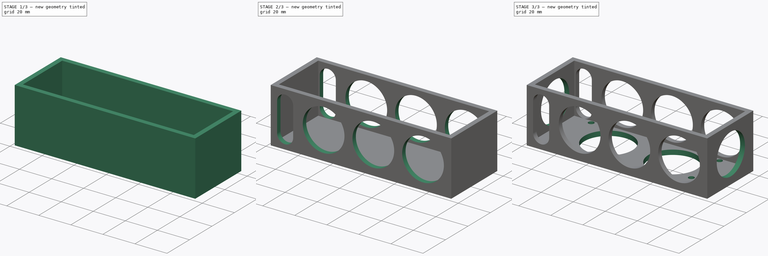
[diagram: build sequence overview — one tinted view per stage of 3, left to right]
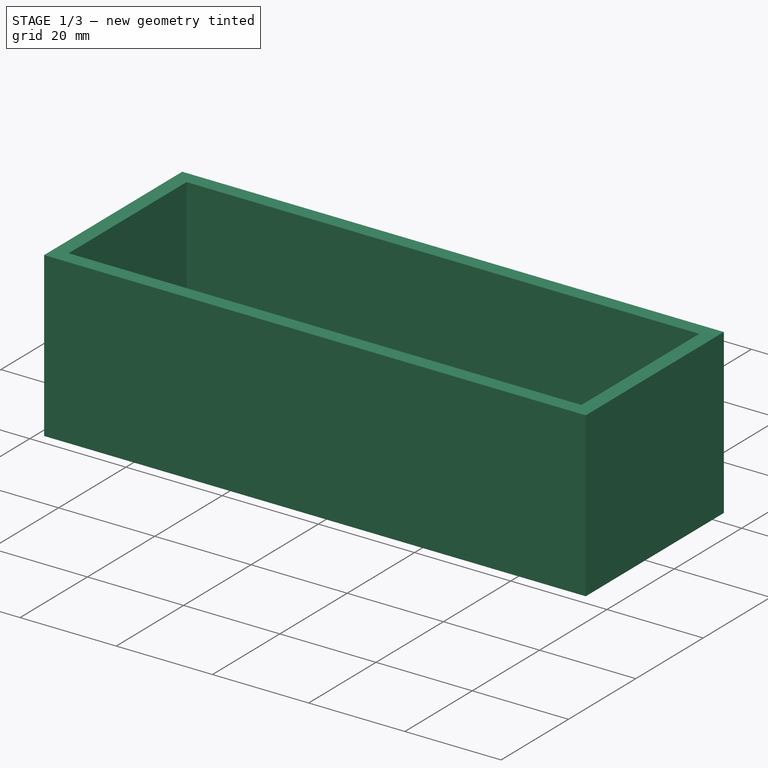
[diagram: stage 1 of 3 — iso view after this stage's code; geometry added in this stage tinted green]
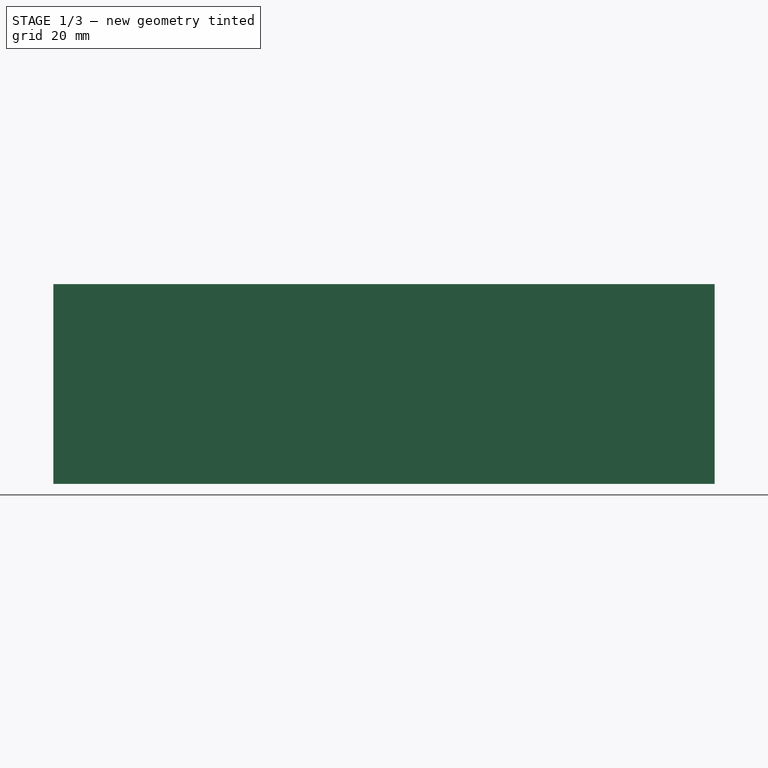
[diagram: stage 1 of 3 — front view after this stage's code; geometry added in this stage tinted green]
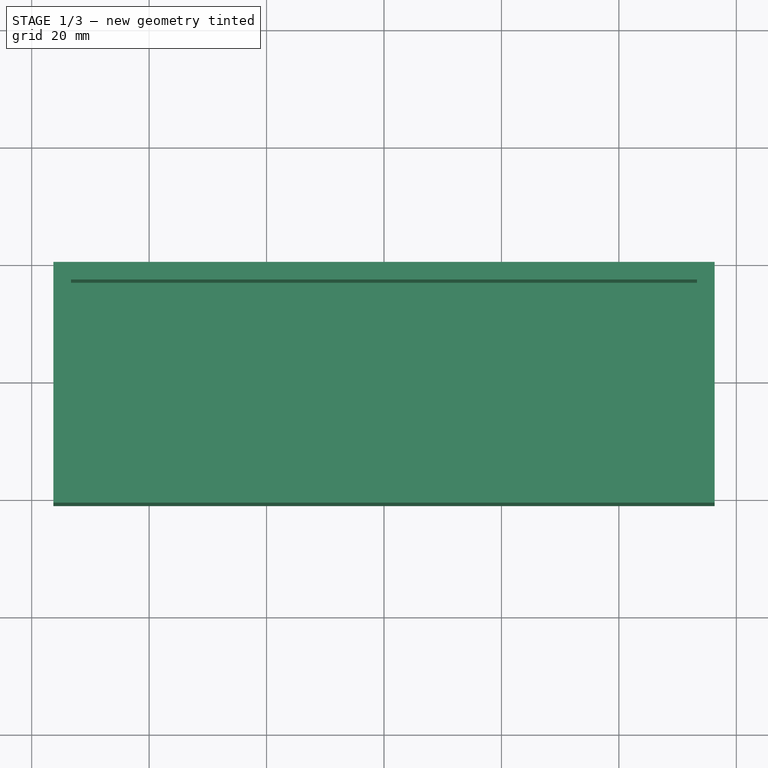
[diagram: stage 1 of 3 — top view after this stage's code; geometry added in this stage tinted green]
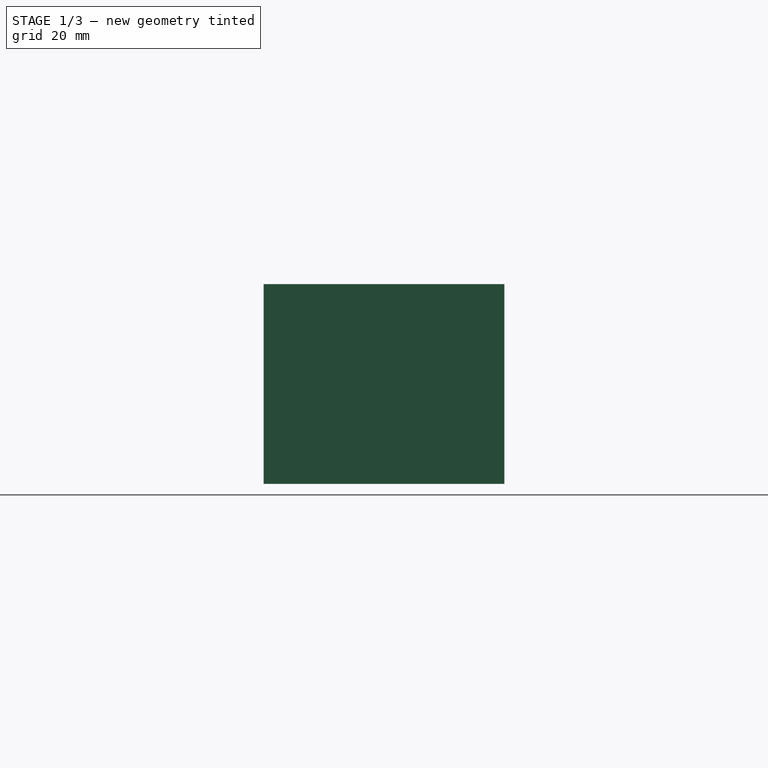
[diagram: stage 1 of 3 — right view after this stage's code; geometry added in this stage tinted green]
FCSTD DOCUMENT  (FreeCAD 0.14R3700 (Git))
Label: BattBox2
License: CC-BY 3.0
LicenseURL: http://creativecommons.org/licenses/by/3.0/
objects: Sketcher::SketchObject×5, PartDesign::Pocket×4, Drawing::FeatureViewPart×4, PartDesign::Pad×1, Drawing::FeaturePage×1
note: 15 computed .brp shape members not serialized (recipe doc carries the construction recipe); baked Part::Feature solids carry a one-line shape summary decoded from their .brp

FEATURE [Sketcher::SketchObject] Sketch  label="Top"
  Placement = pos=(0,0,0) rot=(1,0,0;1.5708rad)
  sketch-geometry (4):
    g0: LineSegment StartX=-56.3 StartY=0 StartZ=0 EndX=56.3 EndY=0 EndZ=0
    g1: LineSegment StartX=56.3 StartY=0 StartZ=0 EndX=56.3 EndY=34 EndZ=0
    g2: LineSegment StartX=56.3 StartY=34 StartZ=0 EndX=-56.3 EndY=34 EndZ=0
    g3: LineSegment StartX=-56.3 StartY=34 StartZ=0 EndX=-56.3 EndY=0 EndZ=0
  constraints (12):
    c: Coincident(g0,g1)
    c: Coincident(g1,g2)
    c: Coincident(g2,g3)
    c: Coincident(g3,g0)
    c: Horizontal(g0)
    c: Horizontal(g2)
    c: Vertical(g1)
    c: Vertical(g3)
    c: DistanceX(g2,g1) = 112.6
    c: DistanceX(g-1,g0) = 56.3
    c: DistanceY(g0,g1) = 34
    c: DistanceY(g-1,g0) = 0
FEATURE [PartDesign::Pad] Pad
  Length = 41
  Length2 = 20
  Placement = pos=(0,0,0) rot=(1,0,0;1.5708rad)
  Sketch = -> Sketch
  Type = 0
FEATURE [Sketcher::SketchObject] Sketch005  label="Side 1"
  Placement = pos=(0,0,34) rot=(0,0,1;3.14159rad)
  Support = -> Pad [Face3]
  sketch-geometry (4):
    g0: LineSegment StartX=-53.3 StartY=38 StartZ=0 EndX=53.3 EndY=38 EndZ=0
    g1: LineSegment StartX=53.3 StartY=38 StartZ=0 EndX=53.3 EndY=3 EndZ=0
    g2: LineSegment StartX=53.3 StartY=3 StartZ=0 EndX=-53.3 EndY=3 EndZ=0
    g3: LineSegment StartX=-53.3 StartY=3 StartZ=0 EndX=-53.3 EndY=38 EndZ=0
  constraints (8):
    c: Coincident(g0,g1)
    c: Coincident(g1,g2)
    c: Coincident(g2,g3)
    c: Coincident(g3,g0)
    c: Horizontal(g0)
    c: Horizontal(g2)
    c: Vertical(g1)
    c: Vertical(g3)
FEATURE [PartDesign::Pocket] Pocket
  Length = 31
  Placement = pos=(0,0,0) rot=(1,0,0;1.5708rad)
  Sketch = -> Sketch005
  Type = 0
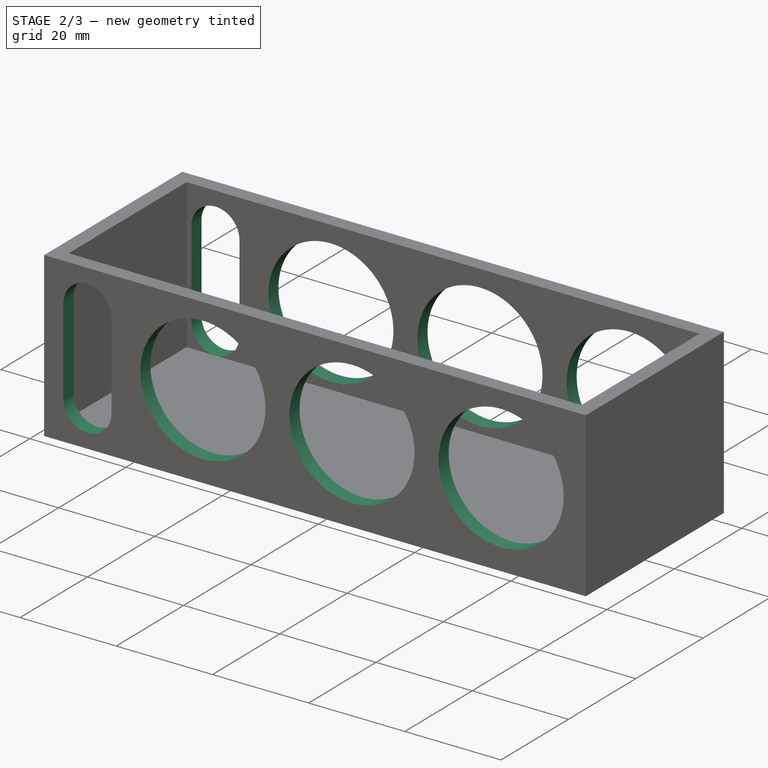
[diagram: stage 2 of 3 — iso view after this stage's code; geometry added in this stage tinted green]
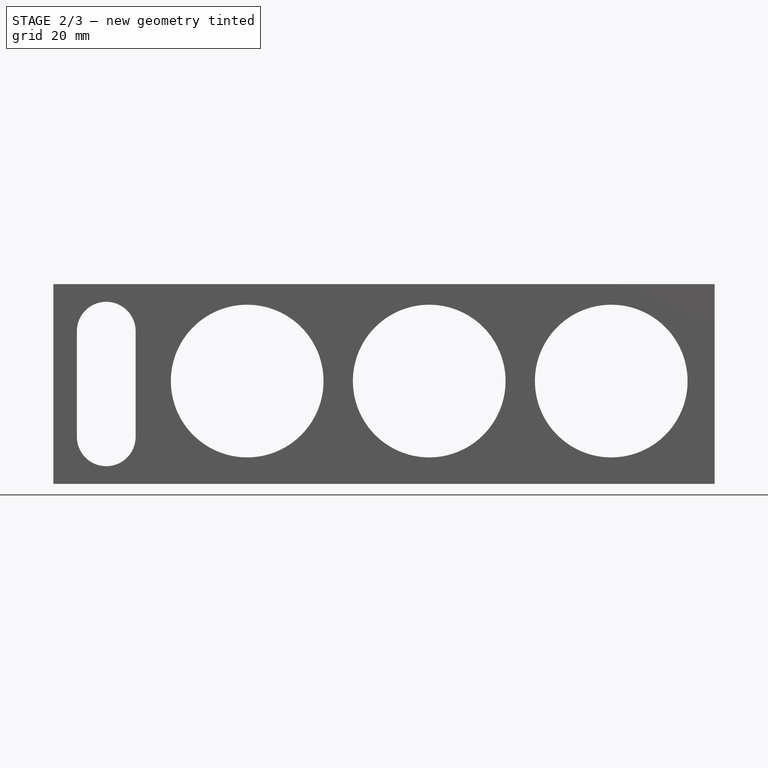
[diagram: stage 2 of 3 — front view after this stage's code; geometry added in this stage tinted green]
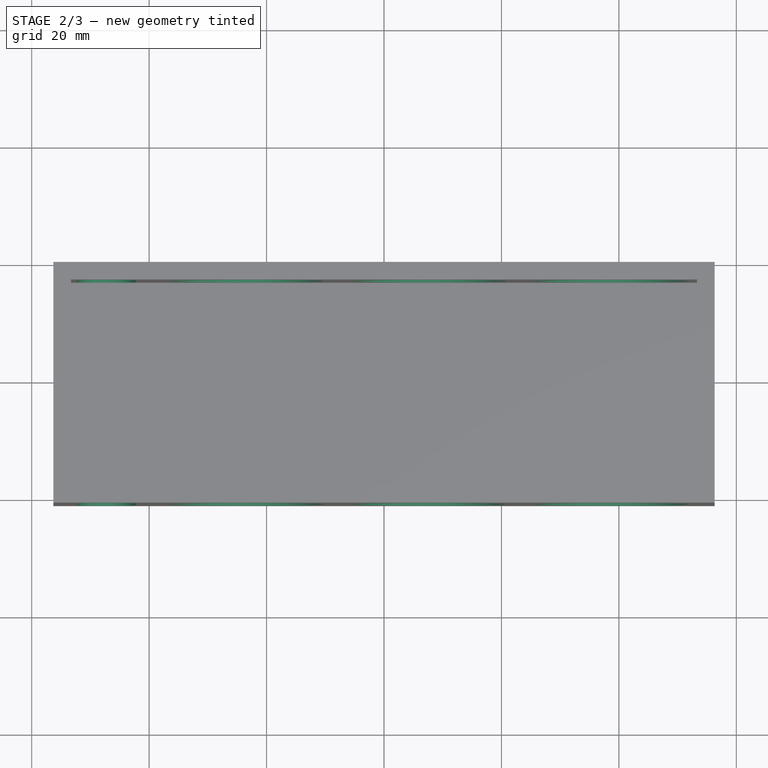
[diagram: stage 2 of 3 — top view after this stage's code; geometry added in this stage tinted green]
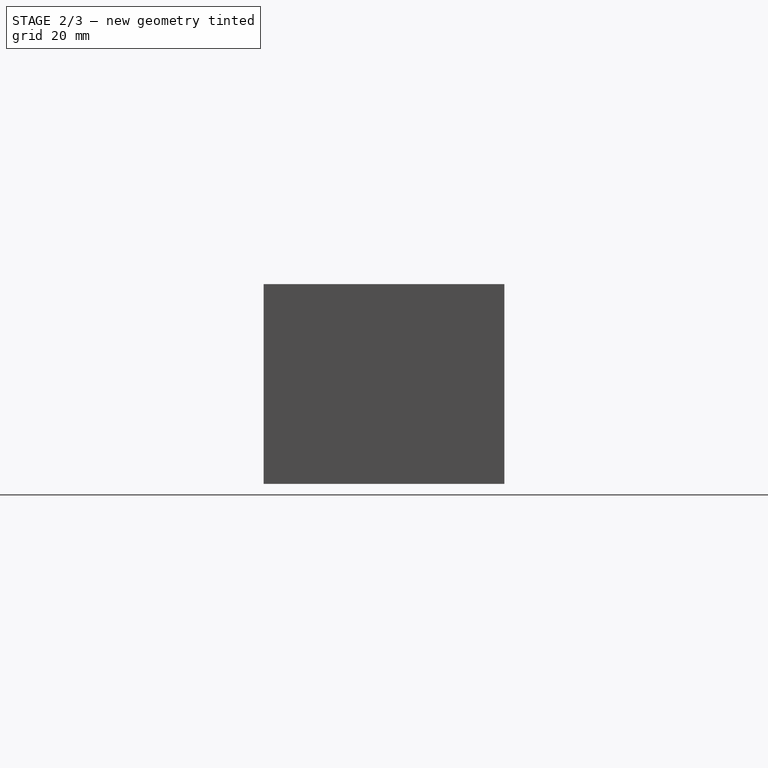
[diagram: stage 2 of 3 — right view after this stage's code; geometry added in this stage tinted green]
FEATURE [Sketcher::SketchObject] Sketch007  label="top cutouts"
  Placement = pos=(0,-41,0) rot=(1,0,0;1.5708rad)
  Support = -> Pocket [Face5]
  sketch-geometry (7):
    g0: Circle CenterX=-23.3 CenterY=17.5 CenterZ=0 NormalX=0 NormalY=0 NormalZ=1 Radius=13
    g1: Circle CenterX=7.7 CenterY=17.5 CenterZ=0 NormalX=0 NormalY=0 NormalZ=1 Radius=13
    g2: Circle CenterX=38.7 CenterY=17.5 CenterZ=0 NormalX=0 NormalY=0 NormalZ=1 Radius=13
    g3: ArcOfCircle CenterX=-47.3 CenterY=26 CenterZ=0 NormalX=0 NormalY=0 NormalZ=1 Radius=5 StartAngle=2.3871e-08 EndAngle=3.14159
    g4: ArcOfCircle CenterX=-47.3 CenterY=8 CenterZ=0 NormalX=0 NormalY=0 NormalZ=1 Radius=5 StartAngle=3.14159 EndAngle=6.28319
    g5: LineSegment StartX=-52.3 StartY=26 StartZ=0 EndX=-52.3 EndY=8.00002 EndZ=0
    g6: LineSegment StartX=-42.3 StartY=26 StartZ=0 EndX=-42.3 EndY=8.00002 EndZ=0
  constraints (11):
    c: Tangent(g3,g5)
    c: Tangent(g3,g6)
    c: Tangent(g4,g5)
    c: Tangent(g4,g6)
    c: Coincident(g3,g6)
    c: Coincident(g3,g5)
    c: Coincident(g5,g4)
    c: Coincident(g6,g4)
    c: Vertical(g5)
    c: Equal(g3,g4)
    c: Radius(g3) = 5
FEATURE [PartDesign::Pocket] Pocket001
  Length = 5
  Placement = pos=(0,0,0) rot=(1,0,0;1.5708rad)
  Sketch = -> Sketch007
  Type = 1
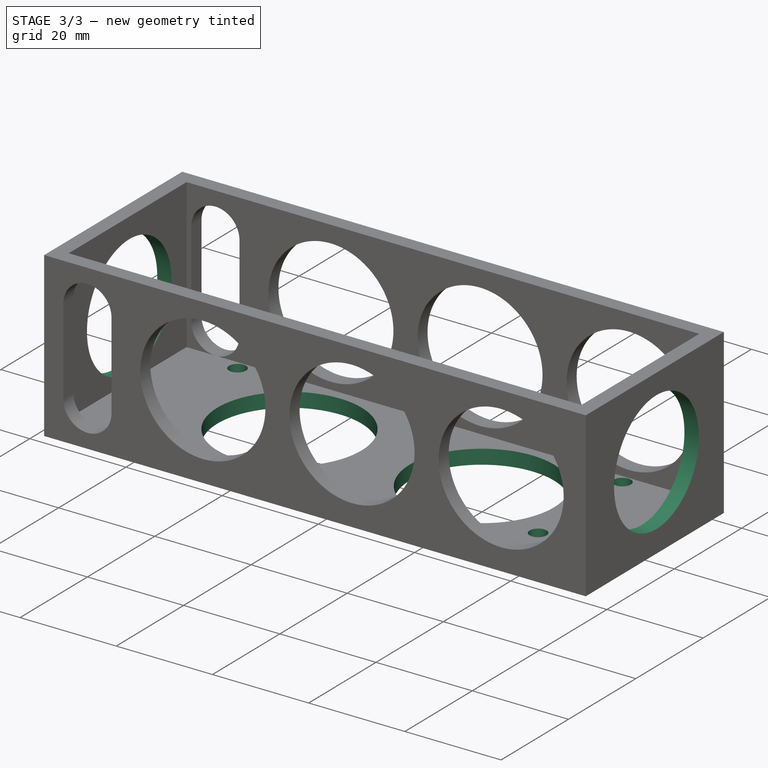
[diagram: stage 3 of 3 — iso view after this stage's code; geometry added in this stage tinted green]
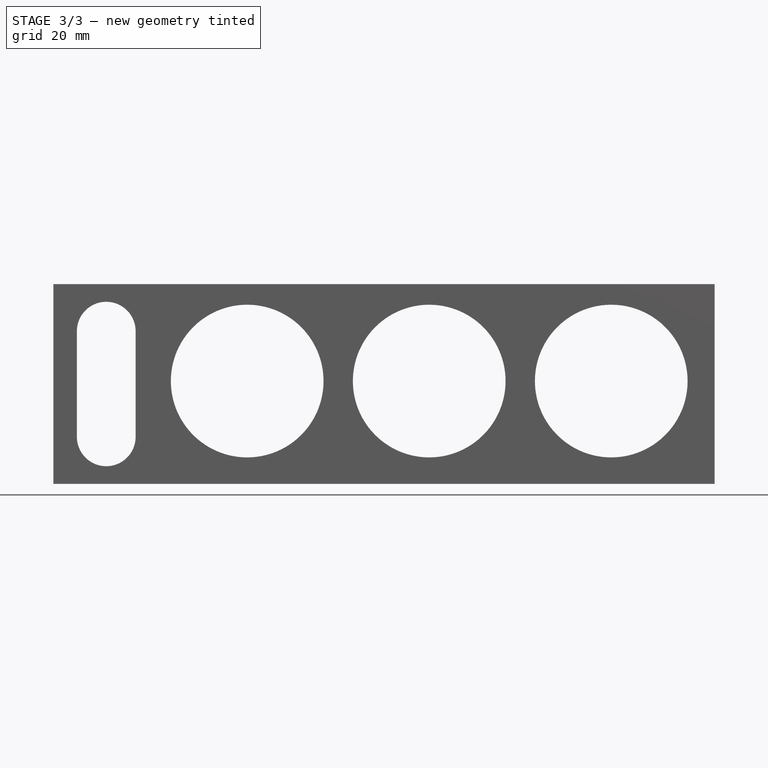
[diagram: stage 3 of 3 — front view after this stage's code; geometry added in this stage tinted green]
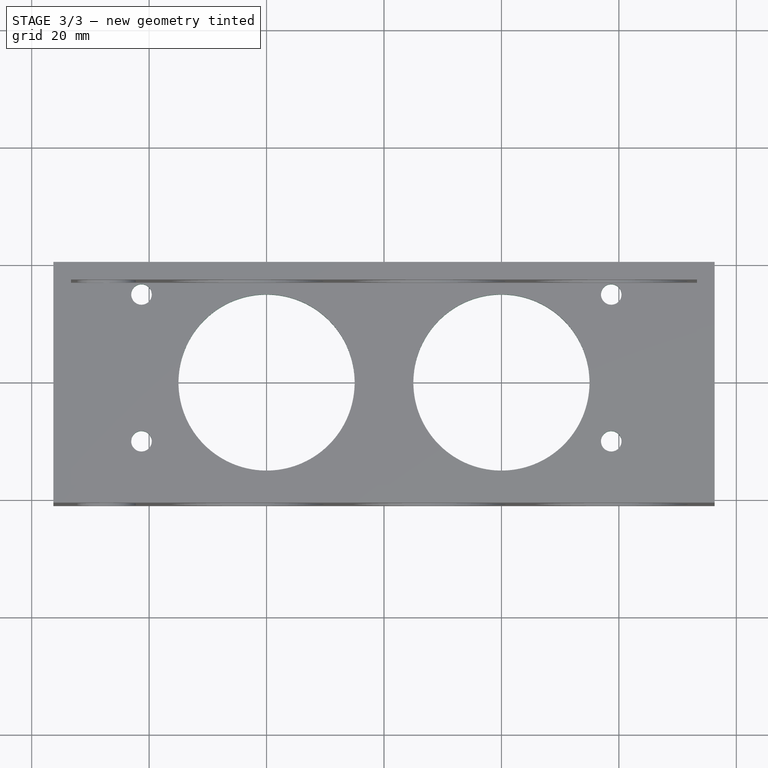
[diagram: stage 3 of 3 — top view after this stage's code; geometry added in this stage tinted green]
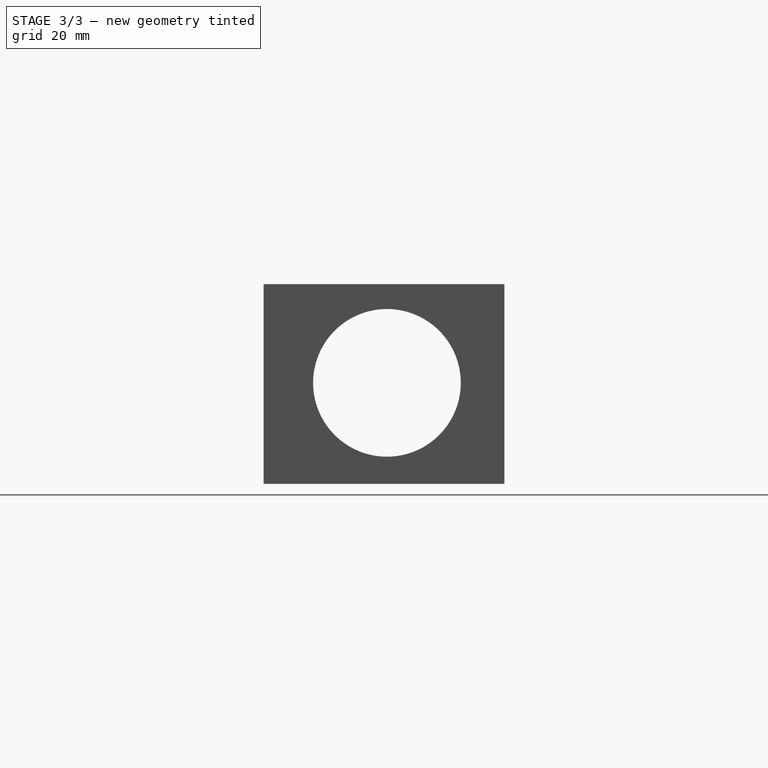
[diagram: stage 3 of 3 — right view after this stage's code; geometry added in this stage tinted green]
FEATURE [Sketcher::SketchObject] Sketch006  label="Back Cut out"
  Placement = pos=(0,0,0) rot=(1,0,0;3.14159rad)
  Support = -> Pocket001 [Face1]
  sketch-geometry (6):
    g0: Circle CenterX=-41.3 CenterY=30 CenterZ=0 NormalX=0 NormalY=0 NormalZ=1 Radius=1.75
    g1: Circle CenterX=38.7 CenterY=30 CenterZ=0 NormalX=0 NormalY=0 NormalZ=1 Radius=1.75
    g2: Circle CenterX=-41.3 CenterY=5 CenterZ=0 NormalX=0 NormalY=0 NormalZ=1 Radius=1.75
    g3: Circle CenterX=38.7 CenterY=5 CenterZ=0 NormalX=0 NormalY=0 NormalZ=1 Radius=1.75
    g4: Circle CenterX=-20 CenterY=20 CenterZ=0 NormalX=0 NormalY=0 NormalZ=1 Radius=15
    g5: Circle CenterX=20 CenterY=20 CenterZ=0 NormalX=0 NormalY=0 NormalZ=1 Radius=15
  constraints (12):
    c: DistanceX(g2,g3) = 80
    c: DistanceY(g3,g2) = 0
    c: DistanceX(g0,g2) = 0
    c: DistanceY(g2,g0) = 25
    c: Radius(g2) = 1.75
    c: Radius(g0) = 1.75
    c: Radius(g3) = 1.75
    c: DistanceX(g1,g3) = 0
    c: DistanceY(g1,g3) = -25
    c: Radius(g1) = 1.75
    c: Radius(g4) = 15
    c: Radius(g5) = 15
FEATURE [PartDesign::Pocket] Pocket002
  Length = 5
  Placement = pos=(0,0,0) rot=(1,0,0;1.5708rad)
  Sketch = -> Sketch006
  Type = 0
FEATURE [Sketcher::SketchObject] Sketch008  label="side cutouts"
  Placement = pos=(56.3,0,0) rot=(0.707107,0,0.707107;3.14159rad)
  Support = -> Pocket002 [Face5]
  sketch-geometry (1):
    g0: Circle CenterX=17.1956 CenterY=20 CenterZ=0 NormalX=0 NormalY=0 NormalZ=1 Radius=12.5755
FEATURE [PartDesign::Pocket] Pocket003
  Length = 5
  Placement = pos=(0,0,0) rot=(1,0,0;1.5708rad)
  Sketch = -> Sketch008
  Type = 1
FEATURE [Drawing::FeatureViewPart] Ortho  label="Ortho_0_0"
  Direction = (1,0,0)
  HiddenWidth = 0.15
  LineWidth = 0.35
  Rotation = -90
  ShowHiddenLines = false
  ShowSmoothLines = false
  Source = -> Pocket003
  Tolerance = 0.05
  ViewResult = <g id="Ortho_0_0"\n   transform="rotate(-90,327.867,203.533) translate(327.867,203.533) scale(1,1)"\n  >\n<g   stroke="rgb(0, 0, 0)"\n   stroke-width="0.35"\n   stroke-linecap="butt"\n   stroke-linejoin="miter"\n   fill="none"\n   transform="scale(1,-1)"\n  >\n<path id= "1" d=" M 0 0 L 3.18634e-014 41 " />\n<path id= "2" d=" M 0 0 L 34 -2.64233e-014 " />\n<path d="M17.5,-1.4877e-014 L18.9555,-1.60082e-014  L20.3928,-1.71251e-014  L21.7936,-1.82138e-014  L23.1405,-1.92605e-014  L24.4164,-2.02521e-014  L25.6054,-2.11761e-014  L26.6924,-2.20209e-014  L27.6638,-2.27759e-014  L28.5074,-2.34315e-014  L29.2126,-2.39795e-014  L29.7705,-2.44131e-014  L30.1741,-2.47267e-014  L30.4183,-2.49165e-014  L30.5,-2.498e-014 " /><path d="M4.5,-4.77396e-015 L4.58174,-4.83748e-015  L4.82594,-5.02726e-015  L5.22952,-5.34091e-015  L5.7874,-5.77447e-015  L6.49259,-6.32251e-015  L7.33619,-6.97812e-015  L8.30761,-7.73307e-015  L9.39463,-8.57785e-015  L10.5836,-9.50185e-015  L11.8595,-1.04934e-014  L13.2064,-1.15402e-014  L14.6072,-1.26289e-014  L16.0445,-1.37458e-014  L17.5,-1.4877e-014 " /><path id= "5" d=" M 3.18634e-014 41 L 34 41 " />\n<path id= "6" d=" M 34 -2.64233e-014 L 34 41 " />\n<circle cx ="17.1956" cy ="20" r ="12.5755" /><path id= "8" d=" M 34 38 L 34 3 " />\n<circle cx ="17.1956" cy ="20" r ="12.5755" /></g>\n</g>
  X = 327.867
  Y = 203.533
FEATURE [Drawing::FeatureViewPart] Ortho001  label="Ortho_0_1"
  Direction = (0,0,1)
  HiddenWidth = 0.15
  LineWidth = 0.35
  Rotation = 90
  ShowHiddenLines = false
  ShowSmoothLines = false
  Source = -> Pocket003
  Tolerance = 0.05
  ViewResult = <blob: 2928 chars omitted>
  X = 327.867
  Y = 89.7667
FEATURE [Drawing::FeatureViewPart] Ortho002  label="Ortho_-1_1"
  Direction = (0.57735,-0.57735,0.57735)
  HiddenWidth = 0.15
  LineWidth = 0.35
  Rotation = -120
  ShowHiddenLines = false
  ShowSmoothLines = false
  Source = -> Pocket003
  Tolerance = 0.05
  ViewResult = <blob: 7477 chars omitted>
  X = 162.929
  Y = 95.278
FEATURE [Drawing::FeatureViewPart] Ortho003  label="Ortho_-1_0"
  Direction = (0,-1,0)
  HiddenWidth = 0.15
  LineWidth = 0.35
  Rotation = 180
  ShowHiddenLines = false
  ShowSmoothLines = false
  Source = -> Pocket003
  Tolerance = 0.05
  ViewResult = <blob: 2299 chars omitted>
  X = 148.433
  Y = 203.533
FEATURE [Drawing::FeaturePage] Page
  EditableTexts = David Klingenberg | 1/25/2015 | Brandon Ortiz | CHECK DATE | SCALE | WEIGHT | 001 | 1 | Drone Battery Bracket | V2
  Group = -> [Ortho,Ortho001,Ortho002,Ortho003]
  Template = C:/Program Files/FreeCAD 0.14/data/Mod/Drawing/Templates/A3_Landscape.svg
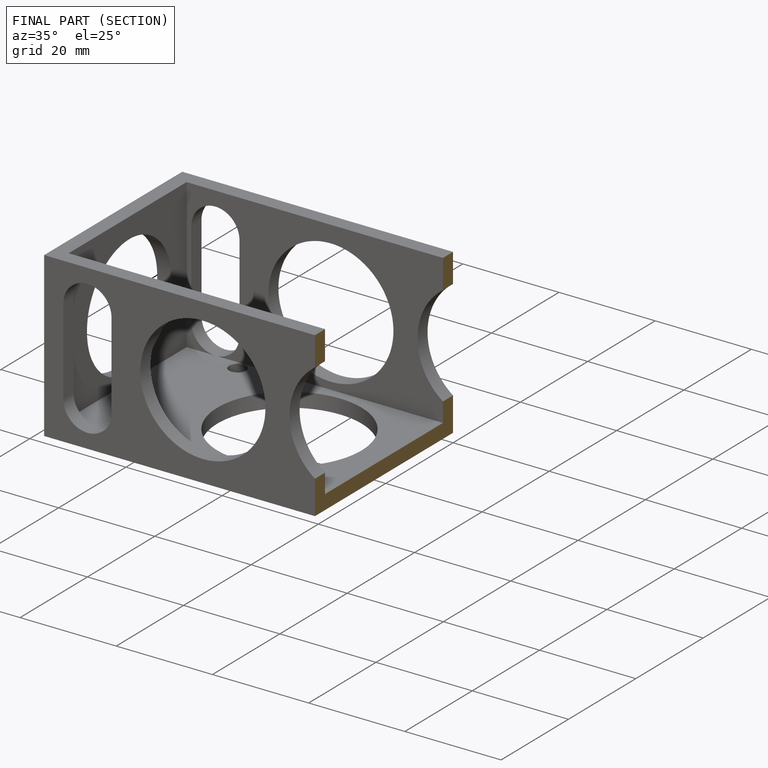
[diagram: finished part — half-section view (interior)]
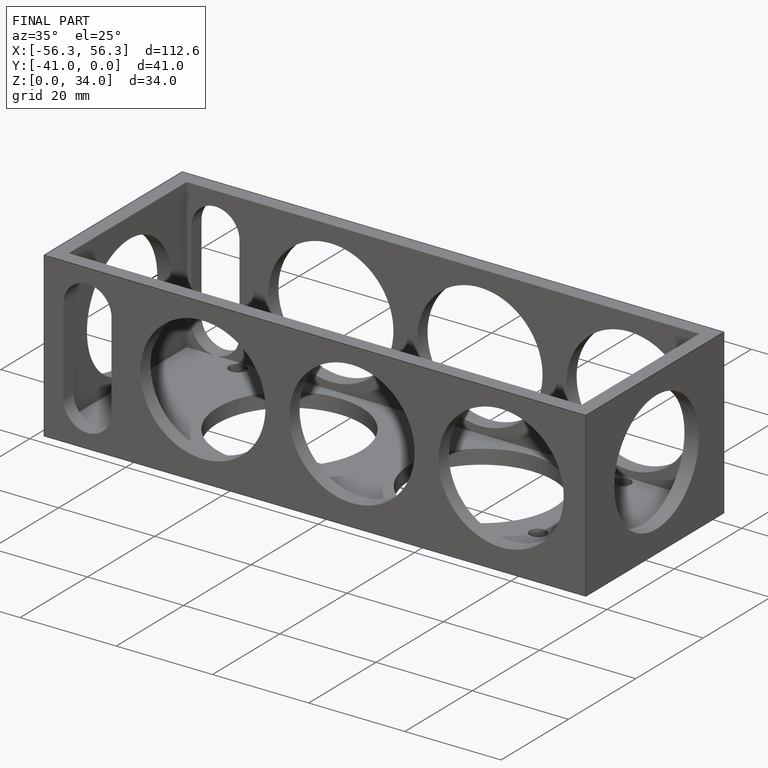
[diagram: finished part — iso view with bounding-box wireframe]
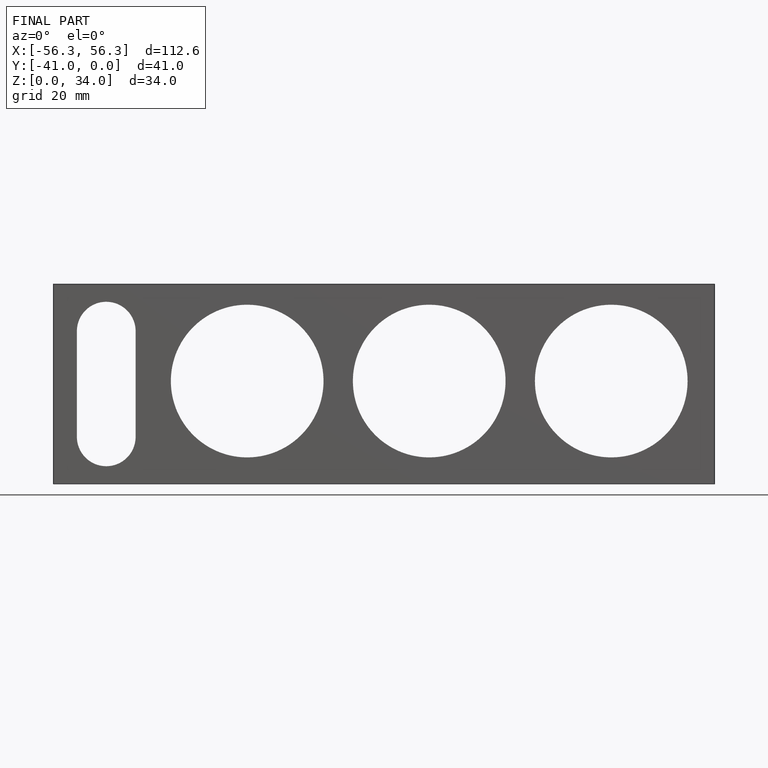
[diagram: finished part — front view with bounding-box wireframe]
